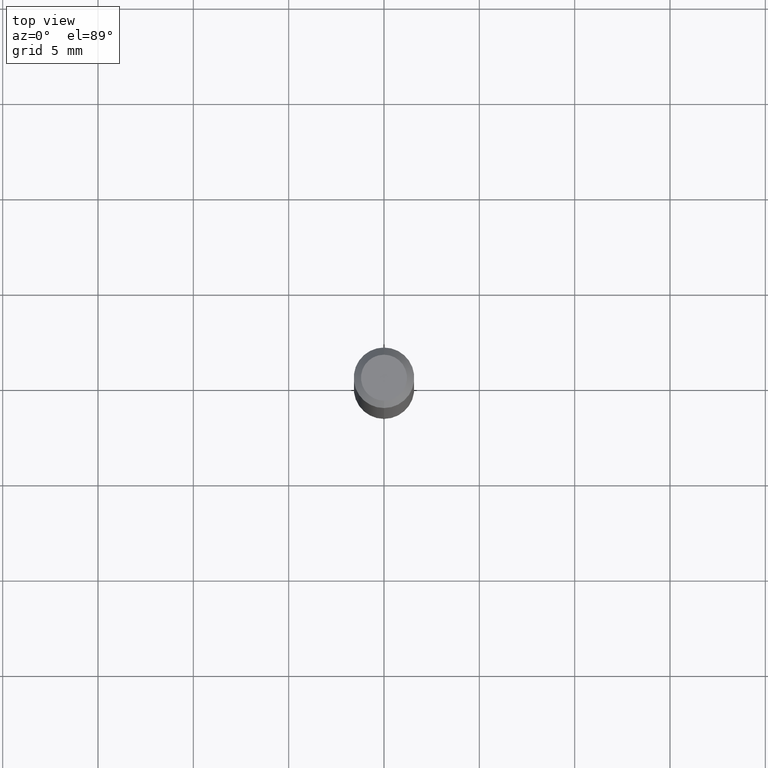
[diagram: clean part render]
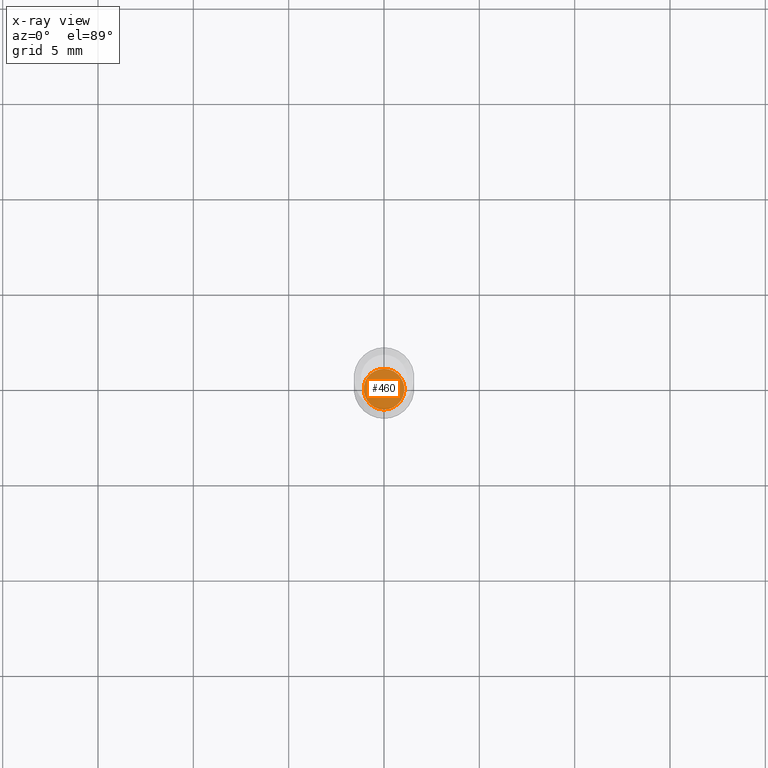
[diagram: x-ray — body ghosted, one internal face saturated and labeled with its STEP entity id]
A machine part, top view, then the same camera in x-ray: the body is ghosted and one INTERNAL B-rep face — a face not visible from any outside direction — is saturated and labeled: STEP entity #460.
In plain terms, the highlighted planar face has unit normal (-0, 0, 1).
Its self-contained STEP definition (entity closure, byte-faithful):
#7 = DIRECTION ( 'NONE',  ( -6.982962677686265922E-15, -1.000000000000000000, 3.491555958414317221E-15 ) ) ;
#27 = CARTESIAN_POINT ( 'NONE',  ( -2.932844324627895747E-16, -0.04200000000000478351, -1.372500000000000275 ) ) ;
#42 = CARTESIAN_POINT ( 'NONE',  ( 3.356334420224448716E-29, -4.792160552923651095E-15, -1.372500000000000275 ) ) ;
#57 = VERTEX_POINT ( 'NONE', #27 ) ;
#108 = CARTESIAN_POINT ( 'NONE',  ( 3.002043058586749878E-16, 0.04199999999999520783, -1.372500000000000719 ) ) ;
#120 = DIRECTION ( 'NONE',  ( -6.982962677686265922E-15, -1.000000000000000000, 6.504399984914913214E-15 ) ) ;
#159 = CIRCLE ( 'NONE', #272, 0.04199999999999999567 ) ;
#169 = VERTEX_POINT ( 'NONE', #108 ) ;
#170 = EDGE_CURVE ( 'NONE', #57, #169, #159, .T. ) ;
#175 = ORIENTED_EDGE ( 'NONE', *, *, #170, .F. ) ;
#189 = DIRECTION ( 'NONE',  ( -2.445416699617084767E-29, 3.491555958414317221E-15, 1.000000000000000000 ) ) ;
#203 = EDGE_LOOP ( 'NONE', ( #175, #246 ) ) ;
#207 = PLANE ( 'NONE',  #387 ) ;
#236 = AXIS2_PLACEMENT_3D ( 'NONE', #485, #253, #120 ) ;
#246 = ORIENTED_EDGE ( 'NONE', *, *, #440, .F. ) ;
#253 = DIRECTION ( 'NONE',  ( -2.445416699617084767E-29, 3.491555958414317221E-15, 1.000000000000000000 ) ) ;
#263 = CARTESIAN_POINT ( 'NONE',  ( 3.356334420224449277E-29, -4.792160552923651884E-15, -1.372500000000000497 ) ) ;
#272 = AXIS2_PLACEMENT_3D ( 'NONE', #263, #189, #300 ) ;
#292 = FACE_OUTER_BOUND ( 'NONE', #203, .T. ) ;
#300 = DIRECTION ( 'NONE',  ( -6.982962677686265922E-15, -1.000000000000000000, 6.504399984914913214E-15 ) ) ;
#381 = CIRCLE ( 'NONE', #236, 0.04199999999999999567 ) ;
#387 = AXIS2_PLACEMENT_3D ( 'NONE', #42, #442, #7 ) ;
#440 = EDGE_CURVE ( 'NONE', #169, #57, #381, .T. ) ;
#442 = DIRECTION ( 'NONE',  ( -2.445416699617084767E-29, 3.491555958414317221E-15, 1.000000000000000000 ) ) ;
#460 = ADVANCED_FACE ( 'NONE', ( #292 ), #207, .F. ) ;
#485 = CARTESIAN_POINT ( 'NONE',  ( 3.356334420224449277E-29, -4.792160552923651884E-15, -1.372500000000000497 ) ) ;